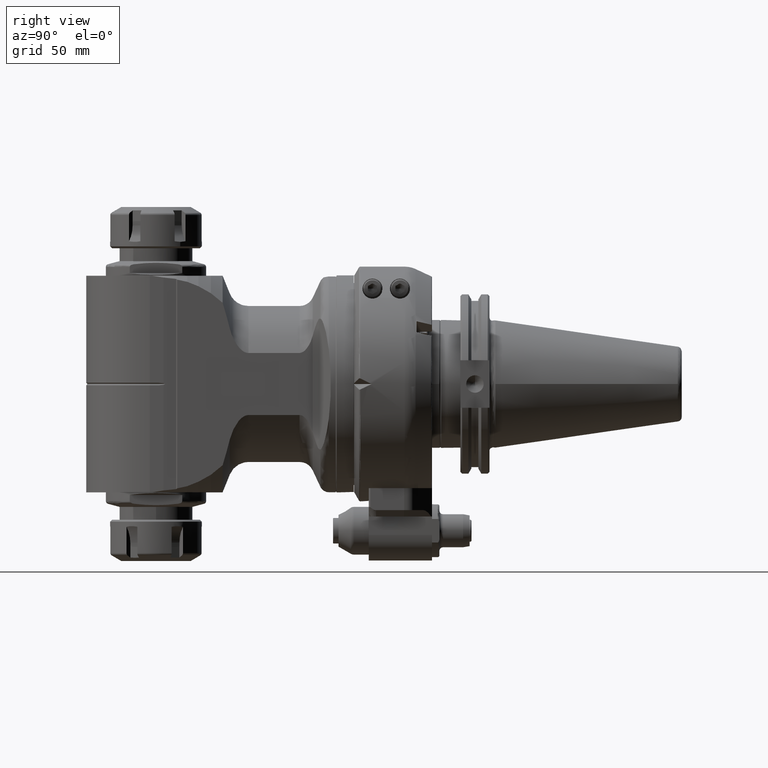
[diagram: clean part render]
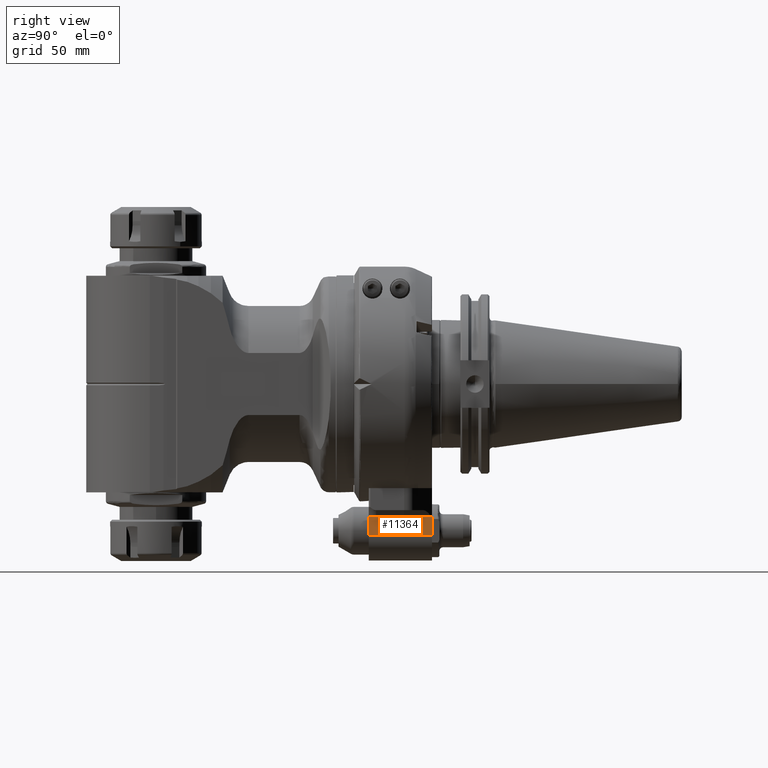
[diagram: same view with one face highlighted and labeled with its STEP entity id]
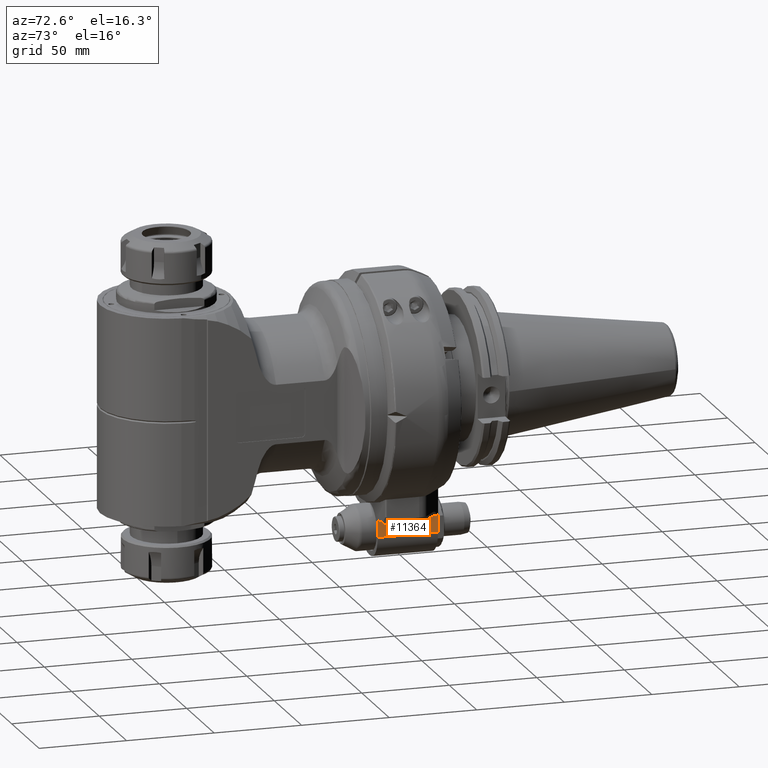
[diagram: same view with one face highlighted and labeled with its STEP entity id]
A machine part, right view. The second image highlights one B-rep face of the part: STEP entity #11364.
A second angle (auxiliary view) of the same face is appended — the face is thin or edge-on in the first view.
In plain terms, the highlighted planar face has unit normal (-1, 0, 0).
Its self-contained STEP definition (entity closure, byte-faithful):
#419=B_SPLINE_CURVE_WITH_KNOTS('',3,(#21257,#21258,#21259,#21260,#21261,
#21262,#21263,#21264,#21265,#21266),.UNSPECIFIED.,.F.,.F.,(4,3,3,4),(1.60321373028462E-9,
0.3333333333333,0.6666666666667,0.98743487232436),.UNSPECIFIED.);
#607=(
BOUNDED_CURVE()
B_SPLINE_CURVE(2,(#21254,#21255,#21256),.UNSPECIFIED.,.F.,.F.)
B_SPLINE_CURVE_WITH_KNOTS((3,3),(-2.7892372673374,-2.78034042696005),
 .UNSPECIFIED.)
CURVE()
GEOMETRIC_REPRESENTATION_ITEM()
RATIONAL_B_SPLINE_CURVE((1.50437708559804,1.50482377743351,1.50526248800164))
REPRESENTATION_ITEM('')
);
#1010=PLANE('',#12650);
#1635=FACE_OUTER_BOUND('',#2400,.T.);
#2400=EDGE_LOOP('',(#10207,#10208,#10209,#10210,#10211,#10212,#10213));
#3009=LINE('',#20714,#3696);
#3011=LINE('',#20722,#3698);
#3085=LINE('',#21147,#3772);
#3111=LINE('',#21250,#3798);
#3112=LINE('',#21252,#3799);
#3696=VECTOR('',#15296,1.012967927639);
#3698=VECTOR('',#15298,8.959184124113);
#3772=VECTOR('',#15590,10.);
#3798=VECTOR('',#15666,34.5);
#3799=VECTOR('',#15669,34.5);
#5327=VERTEX_POINT('',#20711);
#5328=VERTEX_POINT('',#20713);
#5330=VERTEX_POINT('',#20717);
#5331=VERTEX_POINT('',#20721);
#5436=VERTEX_POINT('',#21144);
#5437=VERTEX_POINT('',#21146);
#5459=VERTEX_POINT('',#21253);
#6871=EDGE_CURVE('',#5328,#5327,#3009,.T.);
#6874=EDGE_CURVE('',#5331,#5330,#3011,.T.);
#7023=EDGE_CURVE('',#5437,#5436,#3085,.T.);
#7063=EDGE_CURVE('',#5331,#5436,#3111,.T.);
#7064=EDGE_CURVE('',#5327,#5437,#3112,.T.);
#7065=EDGE_CURVE('',#5459,#5330,#607,.T.);
#7066=EDGE_CURVE('',#5328,#5459,#419,.T.);
#10207=ORIENTED_EDGE('',*,*,#7064,.T.);
#10208=ORIENTED_EDGE('',*,*,#7023,.T.);
#10209=ORIENTED_EDGE('',*,*,#7063,.F.);
#10210=ORIENTED_EDGE('',*,*,#6874,.T.);
#10211=ORIENTED_EDGE('',*,*,#7065,.F.);
#10212=ORIENTED_EDGE('',*,*,#7066,.F.);
#10213=ORIENTED_EDGE('',*,*,#6871,.T.);
#11364=ADVANCED_FACE('',(#1635),#1010,.F.);
#12650=AXIS2_PLACEMENT_3D('',#21251,#15667,#15668);
#15296=DIRECTION('',(-2.314957346125E-9,-6.523451791777E-13,1.));
#15298=DIRECTION('',(0.,0.,1.));
#15590=DIRECTION('',(0.,0.,-1.));
#15666=DIRECTION('',(0.,-1.,0.));
#15667=DIRECTION('center_axis',(-1.,0.,0.));
#15668=DIRECTION('ref_axis',(0.,-1.,0.));
#15669=DIRECTION('',(0.,-1.,0.));
#20711=CARTESIAN_POINT('',(15.,42.499999769231,-72.25));
#20713=CARTESIAN_POINT('',(15.000000003054,42.4999997694306,-73.2629679283757));
#20714=CARTESIAN_POINT('',(15.00000000234,42.499999769231,-73.26296792764));
#20717=CARTESIAN_POINT('',(14.9999999993617,42.4999997690518,-73.2916085707849));
#20721=CARTESIAN_POINT('',(15.,42.499999769231,-82.25));
#20722=CARTESIAN_POINT('',(15.,42.499999769231,-82.25));
#21144=CARTESIAN_POINT('',(15.,7.999999769231,-82.25));
#21146=CARTESIAN_POINT('',(15.,7.999999769231,-72.25));
#21147=CARTESIAN_POINT('',(15.,7.999999769231,-72.25));
#21250=CARTESIAN_POINT('',(15.,42.499999769231,-82.25));
#21251=CARTESIAN_POINT('Origin',(15.,55.299999769231,-52.7999976));
#21252=CARTESIAN_POINT('',(15.,42.499999769231,-72.25));
#21253=CARTESIAN_POINT('',(15.0000252368267,42.4389420267774,-73.2892788777601));
#21254=CARTESIAN_POINT('Ctrl Pts',(15.,42.4392062203706,-73.289230420637));
#21255=CARTESIAN_POINT('Ctrl Pts',(15.,42.4696205968376,-73.2904305645399));
#21256=CARTESIAN_POINT('Ctrl Pts',(15.,42.499999769022,-73.291608571552));
#21257=CARTESIAN_POINT('Ctrl Pts',(15.0000000046865,42.4999997697322,-73.26296792908));
#21258=CARTESIAN_POINT('Ctrl Pts',(15.0000000046857,42.493236355566,-73.2658642523257));
#21259=CARTESIAN_POINT('Ctrl Pts',(15.0000000871083,42.4865062686744,-73.2687546163458));
#21260=CARTESIAN_POINT('Ctrl Pts',(14.9999999918761,42.4797183058432,-73.2716787115765));
#21261=CARTESIAN_POINT('Ctrl Pts',(14.9999998966439,42.4729303429794,-73.2746028068212));
#21262=CARTESIAN_POINT('Ctrl Pts',(14.9999997519404,42.4660845367065,-73.2775607096291));
#21263=CARTESIAN_POINT('Ctrl Pts',(15.0000000081012,42.4594543120615,-73.2804329379558));
#21264=CARTESIAN_POINT('Ctrl Pts',(15.000000254606,42.4530740162742,-73.2831968965356));
#21265=CARTESIAN_POINT('Ctrl Pts',(15.0000001225447,42.4468931615833,-73.2858810708204));
#21266=CARTESIAN_POINT('Ctrl Pts',(15.0000004591346,42.4392062203719,-73.2892304206049));